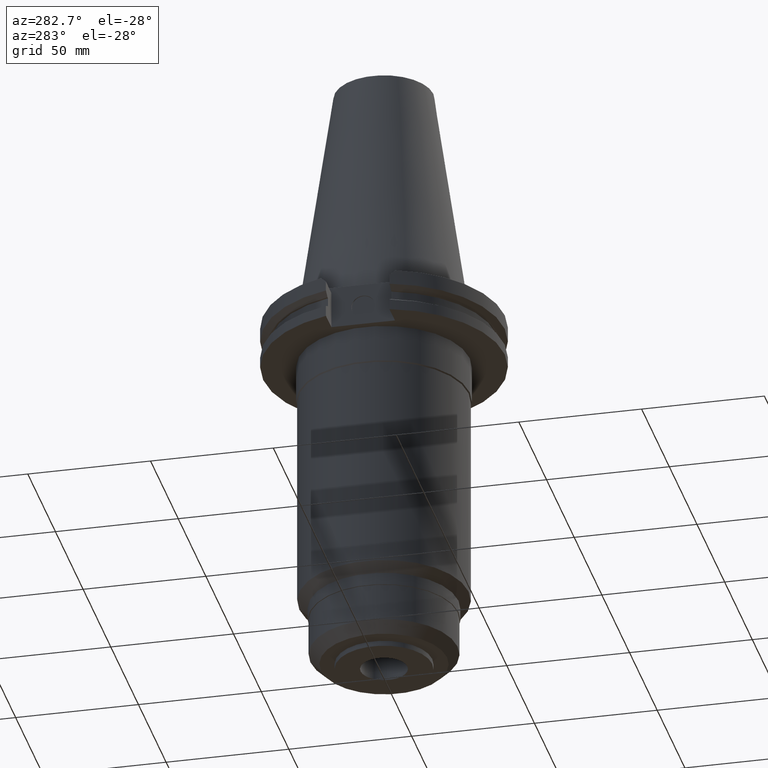
[diagram: clean part render]
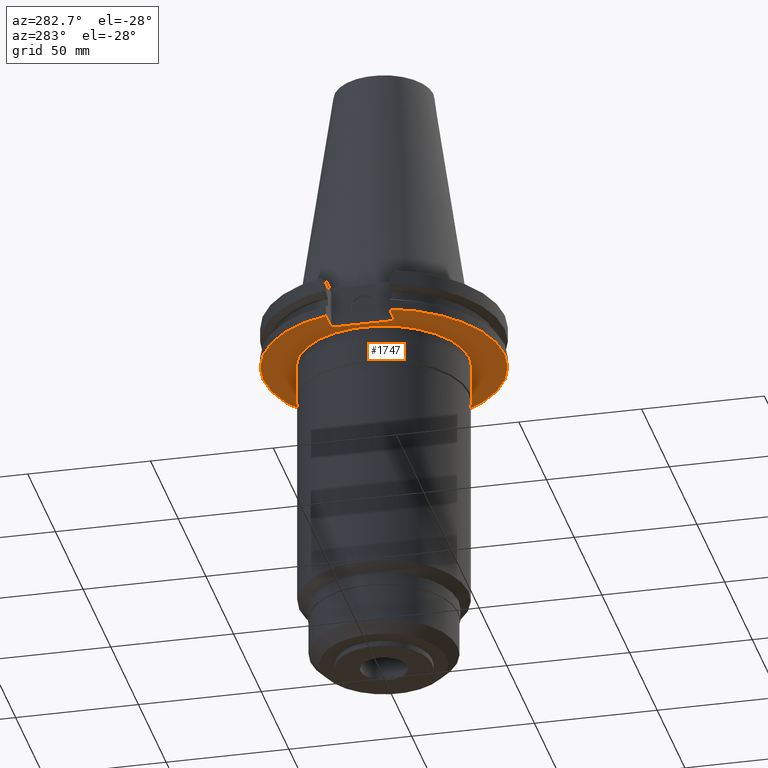
[diagram: same view with one face highlighted and labeled with its STEP entity id]
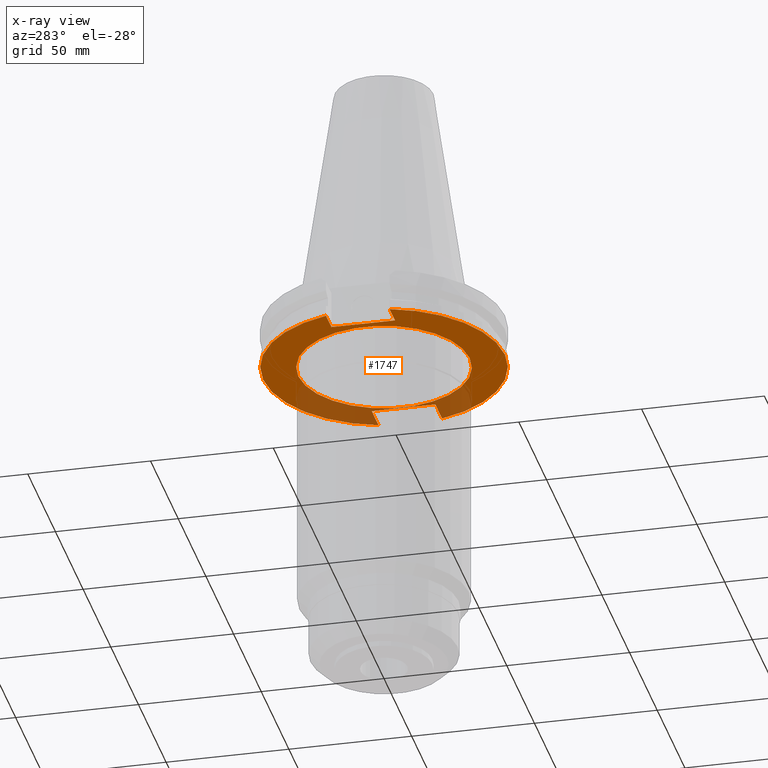
[diagram: x-ray of the same camera — body ghosted, the highlighted face saturated]
A machine part, auxiliary view. The second image highlights one B-rep face of the part: STEP entity #1747.
The next image is the same camera in x-ray: the body ghosted, the highlighted face saturated — about 26% of this face is hidden behind the body in this view.
In plain terms, the highlighted planar face has unit normal (0, 0, -1).
Its self-contained STEP definition (entity closure, byte-faithful):
#170=DIRECTION('',(0.E0,-1.E0,0.E0));
#171=VECTOR('',#170,2.591E1);
#172=CARTESIAN_POINT('',(3.527E1,1.2955E1,-1.905E1));
#173=LINE('',#172,#171);
#205=DIRECTION('',(1.E0,1.455229645531E-14,0.E0));
#206=VECTOR('',#205,1.220671146204E1);
#207=CARTESIAN_POINT('',(3.527E1,1.2955E1,-1.905E1));
#208=LINE('',#207,#206);
#212=CARTESIAN_POINT('',(0.E0,2.625887666732E-14,-1.905E1));
#213=DIRECTION('',(0.E0,0.E0,1.E0));
#214=DIRECTION('',(9.647287063661E-1,2.632461264923E-1,0.E0));
#215=AXIS2_PLACEMENT_3D('',#212,#213,#214);
#220=CARTESIAN_POINT('',(0.E0,2.625887666732E-14,-1.905E1));
#221=DIRECTION('',(0.E0,0.E0,1.E0));
#222=DIRECTION('',(0.E0,1.E0,0.E0));
#223=AXIS2_PLACEMENT_3D('',#220,#221,#222);
#228=DIRECTION('',(-1.E0,-1.795085297572E-14,0.E0));
#229=VECTOR('',#228,9.796711462041E0);
#230=CARTESIAN_POINT('',(-3.768E1,-1.2955E1,-1.905E1));
#231=LINE('',#230,#229);
#235=CARTESIAN_POINT('',(0.E0,2.625887666732E-14,-1.905E1));
#236=DIRECTION('',(0.E0,0.E0,1.E0));
#237=DIRECTION('',(-9.647287063661E-1,-2.632461264923E-1,0.E0));
#238=AXIS2_PLACEMENT_3D('',#235,#236,#237);
#243=CARTESIAN_POINT('',(0.E0,2.625887666732E-14,-1.905E1));
#244=DIRECTION('',(0.E0,0.E0,1.E0));
#245=DIRECTION('',(0.E0,-1.E0,0.E0));
#246=AXIS2_PLACEMENT_3D('',#243,#244,#245);
#251=CARTESIAN_POINT('',(0.E0,2.625887666732E-14,-1.905E1));
#252=DIRECTION('',(0.E0,0.E0,-1.E0));
#253=DIRECTION('',(0.E0,-1.E0,0.E0));
#254=AXIS2_PLACEMENT_3D('',#251,#252,#253);
#259=CARTESIAN_POINT('',(0.E0,2.625887666732E-14,-1.905E1));
#260=DIRECTION('',(0.E0,0.E0,-1.E0));
#261=DIRECTION('',(0.E0,1.E0,0.E0));
#262=AXIS2_PLACEMENT_3D('',#259,#260,#261);
#318=DIRECTION('',(0.E0,1.E0,0.E0));
#319=VECTOR('',#318,2.591E1);
#320=CARTESIAN_POINT('',(-3.768E1,-1.2955E1,-1.905E1));
#321=LINE('',#320,#319);
#355=DIRECTION('',(-1.E0,1.813217472295E-14,0.E0));
#356=VECTOR('',#355,9.796711462041E0);
#357=CARTESIAN_POINT('',(-3.768E1,1.2955E1,-1.905E1));
#358=LINE('',#357,#356);
#605=DIRECTION('',(1.E0,-1.411572756165E-14,0.E0));
#606=VECTOR('',#605,1.220671146204E1);
#607=CARTESIAN_POINT('',(3.527E1,-1.2955E1,-1.905E1));
#608=LINE('',#607,#606);
#1452=CARTESIAN_POINT('',(0.E0,3.4925E1,-1.905E1));
#1453=VERTEX_POINT('',#1452);
#1454=CARTESIAN_POINT('',(0.E0,-3.4925E1,-1.905E1));
#1455=VERTEX_POINT('',#1454);
#1456=CARTESIAN_POINT('',(3.527E1,1.2955E1,-1.905E1));
#1457=CARTESIAN_POINT('',(3.527E1,-1.2955E1,-1.905E1));
#1458=VERTEX_POINT('',#1456);
#1459=VERTEX_POINT('',#1457);
#1460=CARTESIAN_POINT('',(4.747671146204E1,1.2955E1,-1.905E1));
#1461=VERTEX_POINT('',#1460);
#1462=CARTESIAN_POINT('',(0.E0,4.92125E1,-1.905E1));
#1463=CARTESIAN_POINT('',(-4.747671146204E1,1.2955E1,-1.905E1));
#1464=VERTEX_POINT('',#1462);
#1465=VERTEX_POINT('',#1463);
#1466=CARTESIAN_POINT('',(-3.768E1,1.2955E1,-1.905E1));
#1467=VERTEX_POINT('',#1466);
#1468=CARTESIAN_POINT('',(-3.768E1,-1.2955E1,-1.905E1));
#1469=VERTEX_POINT('',#1468);
#1470=CARTESIAN_POINT('',(-4.747671146204E1,-1.2955E1,-1.905E1));
#1471=VERTEX_POINT('',#1470);
#1472=CARTESIAN_POINT('',(0.E0,-4.92125E1,-1.905E1));
#1473=CARTESIAN_POINT('',(4.747671146204E1,-1.2955E1,-1.905E1));
#1474=VERTEX_POINT('',#1472);
#1475=VERTEX_POINT('',#1473);
#1715=CARTESIAN_POINT('',(0.E0,0.E0,-1.905E1));
#1716=DIRECTION('',(0.E0,0.E0,-1.E0));
#1717=DIRECTION('',(0.E0,-1.E0,0.E0));
#1718=AXIS2_PLACEMENT_3D('',#1715,#1716,#1717);
#1719=PLANE('',#1718);
#1720=ORIENTED_EDGE('',*,*,#1701,.F.);
#1722=ORIENTED_EDGE('',*,*,#1721,.T.);
#1724=ORIENTED_EDGE('',*,*,#1723,.T.);
#1726=ORIENTED_EDGE('',*,*,#1725,.T.);
#1728=ORIENTED_EDGE('',*,*,#1727,.F.);
#1730=ORIENTED_EDGE('',*,*,#1729,.F.);
#1732=ORIENTED_EDGE('',*,*,#1731,.T.);
#1734=ORIENTED_EDGE('',*,*,#1733,.T.);
#1736=ORIENTED_EDGE('',*,*,#1735,.T.);
#1738=ORIENTED_EDGE('',*,*,#1737,.F.);
#1739=EDGE_LOOP('',(#1720,#1722,#1724,#1726,#1728,#1730,#1732,#1734,#1736,
#1738));
#1740=FACE_OUTER_BOUND('',#1739,.F.);
#1742=ORIENTED_EDGE('',*,*,#1741,.T.);
#1744=ORIENTED_EDGE('',*,*,#1743,.T.);
#1745=EDGE_LOOP('',(#1742,#1744));
#1746=FACE_BOUND('',#1745,.F.);
#216=CIRCLE('',#215,4.92125E1);
#224=CIRCLE('',#223,4.92125E1);
#239=CIRCLE('',#238,4.92125E1);
#247=CIRCLE('',#246,4.92125E1);
#255=CIRCLE('',#254,3.4925E1);
#263=CIRCLE('',#262,3.4925E1);
#1701=EDGE_CURVE('',#1458,#1459,#173,.T.);
#1721=EDGE_CURVE('',#1458,#1461,#208,.T.);
#1723=EDGE_CURVE('',#1461,#1464,#216,.T.);
#1725=EDGE_CURVE('',#1464,#1465,#224,.T.);
#1727=EDGE_CURVE('',#1467,#1465,#358,.T.);
#1729=EDGE_CURVE('',#1469,#1467,#321,.T.);
#1731=EDGE_CURVE('',#1469,#1471,#231,.T.);
#1733=EDGE_CURVE('',#1471,#1474,#239,.T.);
#1735=EDGE_CURVE('',#1474,#1475,#247,.T.);
#1737=EDGE_CURVE('',#1459,#1475,#608,.T.);
#1741=EDGE_CURVE('',#1455,#1453,#255,.T.);
#1743=EDGE_CURVE('',#1453,#1455,#263,.T.);
#1747=ADVANCED_FACE('',(#1740,#1746),#1719,.T.);